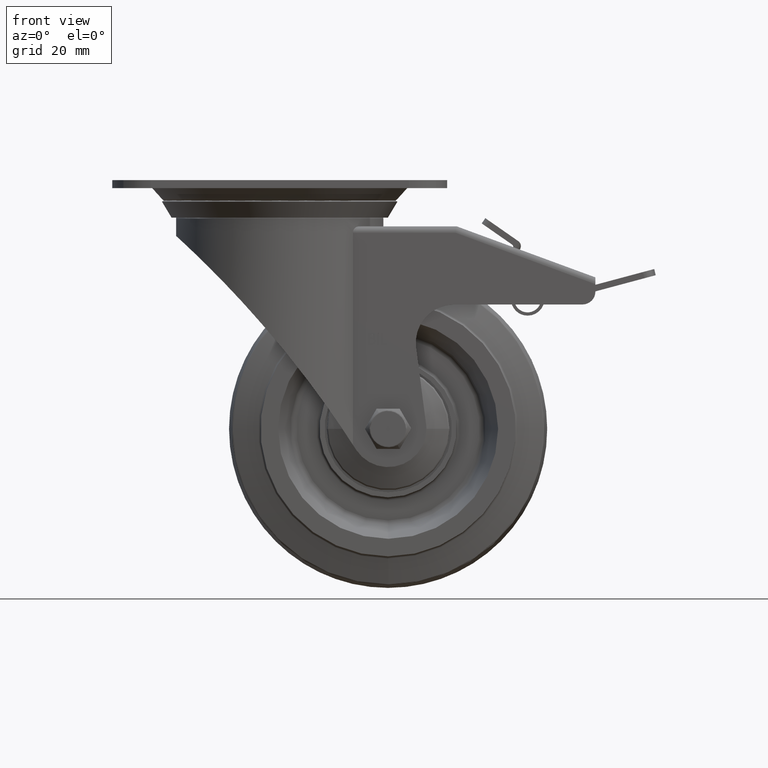
[diagram: clean part render]
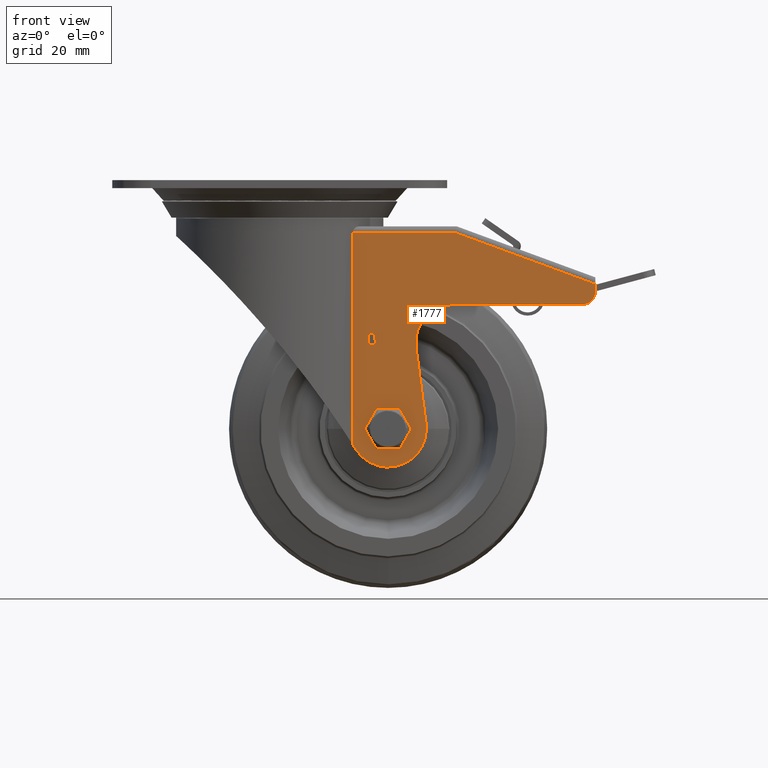
[diagram: same view with one face highlighted and labeled with its STEP entity id]
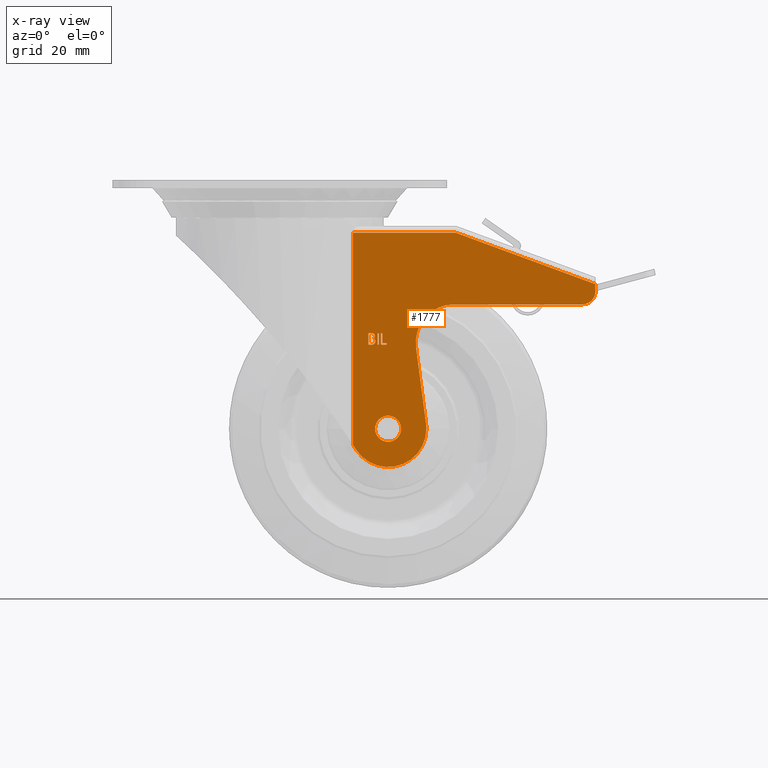
[diagram: x-ray of the same camera — body ghosted, the highlighted face saturated]
A machine part, front view. The second image highlights one B-rep face of the part: STEP entity #1777.
The next image is the same camera in x-ray: the body ghosted, the highlighted face saturated — about 0% of this face is hidden behind the body in this view.
In plain terms, the highlighted planar face has unit normal (-0, -1, 0).
Its self-contained STEP definition (entity closure, byte-faithful):
#1777=ADVANCED_FACE('121:19',(#3347,#3348,#3349,#3350,#3351),#3352,.T.);
#3347=FACE_BOUND('',#6241,.T.);
#3348=FACE_BOUND('',#6242,.T.);
#3349=FACE_BOUND('',#6243,.T.);
#3350=FACE_BOUND('',#6244,.T.);
#3351=FACE_OUTER_BOUND('',#6245,.T.);
#3352=PLANE('',#6246);
#6241=EDGE_LOOP('',(#15503,#15504));
#6242=EDGE_LOOP('',(#15505,#15506,#15507,#15508,#15509,#15510,#15511));
#6243=EDGE_LOOP('',(#15512,#15513,#15514,#15515,#15516));
#6244=EDGE_LOOP('',(#15517,#15518,#15519,#15520,#15521,#15522,#15523,#15524));
#6245=EDGE_LOOP('',(#15525,#15526,#15527,#15528,#15529,#15530,#15531,#15532,#15533,#15534,#15535,#15536,#15537));
#6246=AXIS2_PLACEMENT_3D('',#15538,#15539,#15540);
#15503=ORIENTED_EDGE('',*,*,#23689,.T.);
#15504=ORIENTED_EDGE('',*,*,#23830,.T.);
#15505=ORIENTED_EDGE('',*,*,#23838,.T.);
#15506=ORIENTED_EDGE('',*,*,#23839,.T.);
#15507=ORIENTED_EDGE('',*,*,#23840,.T.);
#15508=ORIENTED_EDGE('',*,*,#23841,.T.);
#15509=ORIENTED_EDGE('',*,*,#23842,.T.);
#15510=ORIENTED_EDGE('',*,*,#23843,.T.);
#15511=ORIENTED_EDGE('',*,*,#23844,.T.);
#15512=ORIENTED_EDGE('',*,*,#23845,.T.);
#15513=ORIENTED_EDGE('',*,*,#23846,.T.);
#15514=ORIENTED_EDGE('',*,*,#23847,.T.);
#15515=ORIENTED_EDGE('',*,*,#23848,.T.);
#15516=ORIENTED_EDGE('',*,*,#23849,.T.);
#15517=ORIENTED_EDGE('',*,*,#23850,.T.);
#15518=ORIENTED_EDGE('',*,*,#23851,.T.);
#15519=ORIENTED_EDGE('',*,*,#23852,.T.);
#15520=ORIENTED_EDGE('',*,*,#23853,.T.);
#15521=ORIENTED_EDGE('',*,*,#23854,.T.);
#15522=ORIENTED_EDGE('',*,*,#23855,.T.);
#15523=ORIENTED_EDGE('',*,*,#23856,.T.);
#15524=ORIENTED_EDGE('',*,*,#23857,.T.);
#15525=ORIENTED_EDGE('',*,*,#23675,.F.);
#15526=ORIENTED_EDGE('',*,*,#23679,.F.);
#15527=ORIENTED_EDGE('',*,*,#23827,.F.);
#15528=ORIENTED_EDGE('',*,*,#23787,.T.);
#15529=ORIENTED_EDGE('',*,*,#23685,.T.);
#15530=ORIENTED_EDGE('',*,*,#23832,.T.);
#15531=ORIENTED_EDGE('',*,*,#23834,.T.);
#15532=ORIENTED_EDGE('',*,*,#23835,.F.);
#15533=ORIENTED_EDGE('',*,*,#23683,.F.);
#15534=ORIENTED_EDGE('',*,*,#23836,.T.);
#15535=ORIENTED_EDGE('',*,*,#23645,.F.);
#15536=ORIENTED_EDGE('',*,*,#23858,.F.);
#15537=ORIENTED_EDGE('',*,*,#23797,.F.);
#15538=CARTESIAN_POINT('',(0.0614608737139057,-0.023,-0.0145));
#15539=DIRECTION('',(-4.62110775502893E-17,-1.0,0.0));
#15540=DIRECTION('',(-1.0,4.62110775502893E-17,0.0));
#23645=EDGE_CURVE('116:5936',#26881,#26884,#26885,.F.);
#23675=EDGE_CURVE('116:6323',#26938,#26940,#26941,.T.);
#23679=EDGE_CURVE('116:6230',#26945,#26938,#26947,.T.);
#23683=EDGE_CURVE('116:6317',#26953,#26949,#26955,.F.);
#23685=EDGE_CURVE('116:6305',#26959,#26956,#26960,.F.);
#23689=EDGE_CURVE('116:6290',#26967,#26964,#26968,.F.);
#23787=EDGE_CURVE('116:6296',#27136,#26959,#27137,.F.);
#23797=EDGE_CURVE('116:6041',#26940,#27150,#27151,.F.);
#23827=EDGE_CURVE('116:6251',#27136,#26945,#27193,.T.);
#23830=EDGE_CURVE('116:6290',#26964,#26967,#27196,.F.);
#23832=EDGE_CURVE('116:6305',#26956,#27197,#27199,.F.);
#23834=EDGE_CURVE('116:6311',#27197,#27200,#27202,.F.);
#23835=EDGE_CURVE('116:6317',#26949,#27200,#27203,.F.);
#23836=EDGE_CURVE('116:6320',#26953,#26884,#27204,.F.);
#23838=EDGE_CURVE('121:1451',#27206,#27207,#27208,.T.);
#23839=EDGE_CURVE('121:1511',#27207,#27209,#27210,.T.);
#23840=EDGE_CURVE('121:1501',#27209,#27211,#27212,.T.);
#23841=EDGE_CURVE('121:1491',#27211,#27213,#27214,.T.);
#23842=EDGE_CURVE('121:1481',#27213,#27215,#27216,.T.);
#23843=EDGE_CURVE('121:1471',#27215,#27217,#27218,.T.);
#23844=EDGE_CURVE('121:1461',#27217,#27206,#27219,.T.);
#23845=EDGE_CURVE('121:1401',#27220,#27221,#27222,.T.);
#23846=EDGE_CURVE('121:1441',#27221,#27223,#27224,.T.);
#23847=EDGE_CURVE('121:1431',#27223,#27225,#27226,.T.);
#23848=EDGE_CURVE('121:1421',#27225,#27227,#27228,.T.);
#23849=EDGE_CURVE('121:1411',#27227,#27220,#27229,.T.);
#23850=EDGE_CURVE('121:1321',#27230,#27231,#27232,.T.);
#23851=EDGE_CURVE('121:1391',#27231,#27233,#27234,.T.);
#23852=EDGE_CURVE('121:1381',#27233,#27235,#27236,.T.);
#23853=EDGE_CURVE('121:1371',#27235,#27237,#27238,.T.);
#23854=EDGE_CURVE('121:1361',#27237,#27239,#27240,.T.);
#23855=EDGE_CURVE('121:1351',#27239,#27241,#27242,.T.);
#23856=EDGE_CURVE('121:1341',#27241,#27243,#27244,.T.);
#23857=EDGE_CURVE('121:1331',#27243,#27230,#27245,.T.);
#23858=EDGE_CURVE('116:5936',#27150,#26881,#27246,.F.);
#26881=VERTEX_POINT('',#31974);
#26884=VERTEX_POINT('',#31978);
#26885=CIRCLE('',#31979,0.004);
#26938=VERTEX_POINT('',#32046);
#26940=VERTEX_POINT('',#32048);
#26941=LINE('',#32049,#32050);
#26945=VERTEX_POINT('',#32055);
#26947=LINE('',#32072,#32073);
#26949=VERTEX_POINT('',#32075);
#26953=VERTEX_POINT('',#32080);
#26955=CIRCLE('',#32083,0.012);
#26956=VERTEX_POINT('',#32084);
#26959=VERTEX_POINT('',#32088);
#26960=CIRCLE('',#32089,0.0120062138743916);
#26964=VERTEX_POINT('',#32094);
#26967=VERTEX_POINT('',#32098);
#26968=CIRCLE('',#32099,0.00410000000000001);
#27136=VERTEX_POINT('',#32604);
#27137=CIRCLE('',#32605,0.336151856425228);
#27150=VERTEX_POINT('',#32798);
#27151=LINE('',#32799,#32800);
#27193=LINE('',#32862,#32863);
#27196=CIRCLE('',#32881,0.00410000000000001);
#27197=VERTEX_POINT('',#32882);
#27199=CIRCLE('',#32885,0.0120062138743916);
#27200=VERTEX_POINT('',#32886);
#27202=LINE('',#32889,#32890);
#27203=CIRCLE('',#32891,0.012);
#27204=LINE('',#32892,#32893);
#27206=VERTEX_POINT('',#32895);
#27207=VERTEX_POINT('',#32896);
#27208=B_SPLINE_CURVE_WITH_KNOTS('',2,(#32897,#32898,#32899,#32900,#32901,#32902,#32903,#32904),.UNSPECIFIED.,.F.,.F.,(3,1,1,1,1,1,3),(0.0,1.0,1.99999999999999,2.99999999999997,3.99999999999996,5.16362566215416,6.32725132430834),.UNSPECIFIED.);
#27209=VERTEX_POINT('',#32905);
#27210=B_SPLINE_CURVE_WITH_KNOTS('',2,(#32906,#32907,#32908,#32909,#32910,#32911,#32912,#32913),.UNSPECIFIED.,.F.,.F.,(3,1,1,1,1,1,3),(0.0,1.0,1.99999999999998,2.76418305597574,3.52836611195151,4.29254916792726,5.056732223903),.UNSPECIFIED.);
#27211=VERTEX_POINT('',#32914);
#27212=LINE('',#32915,#32916);
#27213=VERTEX_POINT('',#32917);
#27214=B_SPLINE_CURVE_WITH_KNOTS('',2,(#32918,#32919,#32920,#32921),.UNSPECIFIED.,.F.,.F.,(3,1,3),(0.0,1.0,2.00000000000008),.UNSPECIFIED.);
#27215=VERTEX_POINT('',#32922);
#27216=LINE('',#32923,#32924);
#27217=VERTEX_POINT('',#32925);
#27218=B_SPLINE_CURVE_WITH_KNOTS('',2,(#32926,#32927,#32928,#32929),.UNSPECIFIED.,.F.,.F.,(3,1,3),(0.0,1.0,2.00000000000008),.UNSPECIFIED.);
#27219=LINE('',#32930,#32931);
#27220=VERTEX_POINT('',#32932);
#27221=VERTEX_POINT('',#32933);
#27222=B_SPLINE_CURVE_WITH_KNOTS('',2,(#32934,#32935,#32936,#32937),.UNSPECIFIED.,.F.,.F.,(3,1,3),(0.0,1.0,2.00000000000008),.UNSPECIFIED.);
#27223=VERTEX_POINT('',#32938);
#27224=B_SPLINE_CURVE_WITH_KNOTS('',2,(#32939,#32940,#32941,#32942),.UNSPECIFIED.,.F.,.F.,(3,1,3),(0.0,1.0,1.99999999999997),.UNSPECIFIED.);
#27225=VERTEX_POINT('',#32943);
#27226=LINE('',#32944,#32945);
#27227=VERTEX_POINT('',#32946);
#27228=B_SPLINE_CURVE_WITH_KNOTS('',2,(#32947,#32948,#32949,#32950,#32951,#32952),.UNSPECIFIED.,.F.,.F.,(3,1,1,1,3),(0.0,1.0,2.0,3.00768321513001,4.01536643026005),.UNSPECIFIED.);
#27229=LINE('',#32953,#32954);
#27230=VERTEX_POINT('',#32955);
#27231=VERTEX_POINT('',#32956);
#27232=B_SPLINE_CURVE_WITH_KNOTS('',2,(#32957,#32958,#32959,#32960,#32961,#32962),.UNSPECIFIED.,.F.,.F.,(3,1,1,1,3),(0.0,1.0,2.0,2.99231678486995,3.98463356973985),.UNSPECIFIED.);
#27233=VERTEX_POINT('',#32963);
#27234=LINE('',#32964,#32965);
#27235=VERTEX_POINT('',#32966);
#27236=LINE('',#32967,#32968);
#27237=VERTEX_POINT('',#32969);
#27238=LINE('',#32970,#32971);
#27239=VERTEX_POINT('',#32972);
#27240=B_SPLINE_CURVE_WITH_KNOTS('',2,(#32973,#32974,#32975,#32976,#32977,#32978),.UNSPECIFIED.,.F.,.F.,(3,1,1,1,3),(0.0,1.0,1.99999999999989,3.00850546780042,4.01701093560095),.UNSPECIFIED.);
#27241=VERTEX_POINT('',#32979);
#27242=LINE('',#32980,#32981);
#27243=VERTEX_POINT('',#32982);
#27244=B_SPLINE_CURVE_WITH_KNOTS('',2,(#32983,#32984,#32985,#32986),.UNSPECIFIED.,.F.,.F.,(3,1,3),(0.0,1.0,2.00000000000005),.UNSPECIFIED.);
#27245=LINE('',#32987,#32988);
#27246=CIRCLE('',#32989,0.004);
#31974=CARTESIAN_POINT('',(0.0978284271247462,-0.023,-0.0378284271247462));
#31978=CARTESIAN_POINT('',(0.095,-0.023,-0.039));
#31979=AXIS2_PLACEMENT_3D('',#41978,#41979,#41980);
#32046=CARTESIAN_POINT('',(0.0551438477624214,-0.023,-0.0165));
#32048=CARTESIAN_POINT('',(0.099,-0.023,-0.0326309985241669));
#32049=CARTESIAN_POINT('',(0.0683098570556261,-0.023,-0.0213426700848569));
#32050=VECTOR('',#42040,1.0);
#32055=CARTESIAN_POINT('',(0.0229619250064101,-0.023,-0.0165));
#32072=CARTESIAN_POINT('',(0.0307304368569528,-0.023,-0.0165));
#32073=VECTOR('',#42045,1.0);
#32075=CARTESIAN_POINT('',(0.0456527576748423,-0.023,-0.0430839339503847));
#32080=CARTESIAN_POINT('',(0.054671399385107,-0.023,-0.039));
#32083=AXIS2_PLACEMENT_3D('',#42051,#42052,#42053);
#32084=CARTESIAN_POINT('',(0.0460062138743916,-0.023,-0.078));
#32088=CARTESIAN_POINT('',(0.0239999999999996,-0.023,-0.0846444842988471));
#32089=AXIS2_PLACEMENT_3D('',#42055,#42056,#42057);
#32094=CARTESIAN_POINT('',(0.0299,-0.023,-0.078));
#32098=CARTESIAN_POINT('',(0.0381,-0.023,-0.078));
#32099=AXIS2_PLACEMENT_3D('',#42063,#42064,#42065);
#32604=CARTESIAN_POINT('',(0.0229619250064161,-0.0229999999999978,-0.0830301909058786));
#32605=AXIS2_PLACEMENT_3D('',#42227,#42228,#42229);
#32798=CARTESIAN_POINT('',(0.099,-0.023,-0.035));
#32799=CARTESIAN_POINT('',(0.099,-0.023,-0.0145));
#32800=VECTOR('',#42245,1.0);
#32862=CARTESIAN_POINT('',(0.0229619250064101,-0.023,-0.00908812744929506));
#32863=VECTOR('',#42293,1.0);
#32881=AXIS2_PLACEMENT_3D('',#42297,#42298,#42299);
#32882=CARTESIAN_POINT('',(0.0459546619707595,-0.023,-0.0768885915411021));
#32885=AXIS2_PLACEMENT_3D('',#42301,#42302,#42303);
#32886=CARTESIAN_POINT('',(0.0427727054757284,-0.023,-0.052555983049688));
#32889=CARTESIAN_POINT('',(0.0412806079432736,-0.023,-0.041145825448563));
#32890=VECTOR('',#42305,1.0);
#32891=AXIS2_PLACEMENT_3D('',#42306,#42307,#42308);
#32892=CARTESIAN_POINT('',(0.0657304368569528,-0.023,-0.039));
#32893=VECTOR('',#42309,1.0);
#32895=CARTESIAN_POINT('',(0.0288947813287422,-0.023,-0.0480337421188891));
#32896=CARTESIAN_POINT('',(0.0294936635940179,-0.023,-0.0496330528491424));
#32897=CARTESIAN_POINT('',(0.0288947813287422,-0.023,-0.0480337421188891));
#32898=CARTESIAN_POINT('',(0.0290858580798599,-0.023,-0.0480337421188891));
#32899=CARTESIAN_POINT('',(0.0294250346819464,-0.023,-0.0481791594065195));
#32900=CARTESIAN_POINT('',(0.0296749042795619,-0.023,-0.048429029004135));
#32901=CARTESIAN_POINT('',(0.0298198185865663,-0.023,-0.0487670878714971));
#32902=CARTESIAN_POINT('',(0.0298198185865663,-0.023,-0.0491779671561469));
#32903=CARTESIAN_POINT('',(0.029634833489696,-0.023,-0.0495478814631514));
#32904=CARTESIAN_POINT('',(0.0294936635940179,-0.023,-0.0496330528491424));
#32905=CARTESIAN_POINT('',(0.0288947813287422,-0.023,-0.0516337421188891));
#32906=CARTESIAN_POINT('',(0.0294936635940179,-0.023,-0.0496330528491424));
#32907=CARTESIAN_POINT('',(0.0297097217162236,-0.023,-0.04974544107567));
#32908=CARTESIAN_POINT('',(0.0299951352780716,-0.023,-0.0502395915972795));
#32909=CARTESIAN_POINT('',(0.0299951352780716,-0.023,-0.0507609589594256));
#32910=CARTESIAN_POINT('',(0.0298222217162236,-0.023,-0.0511620580652378));
#32911=CARTESIAN_POINT('',(0.0295232835642116,-0.023,-0.0514609962172497));
#32912=CARTESIAN_POINT('',(0.0291226874390254,-0.023,-0.0516337421188891));
#32913=CARTESIAN_POINT('',(0.0288947813287422,-0.023,-0.0516337421188891));
#32914=CARTESIAN_POINT('',(0.0280180302110075,-0.023,-0.0516337421188891));
#32915=CARTESIAN_POINT('',(0.0449586397418903,-0.023,-0.0516337421188891));
#32916=VECTOR('',#42313,1.0);
#32917=CARTESIAN_POINT('',(0.0277943714926766,-0.023,-0.0514118717761171));
#32918=CARTESIAN_POINT('',(0.0280180302110075,-0.023,-0.0516337421188891));
#32919=CARTESIAN_POINT('',(0.0279227433257616,-0.023,-0.0516337421188891));
#32920=CARTESIAN_POINT('',(0.0277943714926766,-0.023,-0.0515053702858041));
#32921=CARTESIAN_POINT('',(0.0277943714926766,-0.023,-0.0514118717761171));
#32922=CARTESIAN_POINT('',(0.0277943714926766,-0.023,-0.048255612461661));
#32923=CARTESIAN_POINT('',(0.0277943714926766,-0.023,-0.0321668710594445));
#32924=VECTOR('',#42314,1.0);
#32925=CARTESIAN_POINT('',(0.0280180302110075,-0.023,-0.0480337421188891));
#32926=CARTESIAN_POINT('',(0.0277943714926766,-0.023,-0.048255612461661));
#32927=CARTESIAN_POINT('',(0.0277943714926766,-0.023,-0.0481628404795448));
#32928=CARTESIAN_POINT('',(0.0279234698533324,-0.023,-0.0480337421188891));
#32929=CARTESIAN_POINT('',(0.0280180302110075,-0.023,-0.0480337421188891));
#32930=CARTESIAN_POINT('',(0.0449586397418903,-0.023,-0.0480337421188891));
#32931=VECTOR('',#42315,1.0);
#32932=CARTESIAN_POINT('',(0.0306593491379821,-0.023,-0.048255612461661));
#32933=CARTESIAN_POINT('',(0.030883007856313,-0.023,-0.0480337421188891));
#32934=CARTESIAN_POINT('',(0.0306593491379821,-0.023,-0.048255612461661));
#32935=CARTESIAN_POINT('',(0.0306593491379821,-0.023,-0.0481628404795448));
#32936=CARTESIAN_POINT('',(0.0307884474986379,-0.023,-0.0480337421188891));
#32937=CARTESIAN_POINT('',(0.030883007856313,-0.023,-0.0480337421188891));
#32938=CARTESIAN_POINT('',(0.0311066106879076,-0.023,-0.048255612461661));
#32939=CARTESIAN_POINT('',(0.030883007856313,-0.023,-0.0480337421188891));
#32940=CARTESIAN_POINT('',(0.0309768416864173,-0.023,-0.0480337421188891));
#32941=CARTESIAN_POINT('',(0.0311066106879076,-0.023,-0.0481635670071156));
#32942=CARTESIAN_POINT('',(0.0311066106879076,-0.023,-0.048255612461661));
#32943=CARTESIAN_POINT('',(0.0311066106879076,-0.023,-0.0514118717761171));
#32944=CARTESIAN_POINT('',(0.0311066106879076,-0.023,-0.0321668710594445));
#32945=VECTOR('',#42316,1.0);
#32946=CARTESIAN_POINT('',(0.0306593491379821,-0.023,-0.0514118717761171));
#32947=CARTESIAN_POINT('',(0.0311066106879076,-0.023,-0.0514118717761171));
#32948=CARTESIAN_POINT('',(0.0311066106879076,-0.023,-0.0515046437582333));
#32949=CARTESIAN_POINT('',(0.0309775682139881,-0.023,-0.0516337421188891));
#32950=CARTESIAN_POINT('',(0.0307877209710671,-0.023,-0.0516337421188891));
#32951=CARTESIAN_POINT('',(0.0306593491379821,-0.023,-0.0515053702858041));
#32952=CARTESIAN_POINT('',(0.0306593491379821,-0.023,-0.0514118717761171));
#32953=CARTESIAN_POINT('',(0.0306593491379821,-0.023,-0.0321668710594445));
#32954=VECTOR('',#42317,1.0);
#32955=CARTESIAN_POINT('',(0.0317359512244203,-0.023,-0.048255612461661));
#32956=CARTESIAN_POINT('',(0.0321832127743458,-0.023,-0.048255612461661));
#32957=CARTESIAN_POINT('',(0.0317359512244203,-0.023,-0.048255612461661));
#32958=CARTESIAN_POINT('',(0.0317359512244203,-0.023,-0.0481628404795448));
#32959=CARTESIAN_POINT('',(0.031865049585076,-0.023,-0.0480337421188891));
#32960=CARTESIAN_POINT('',(0.0320534437728555,-0.023,-0.0480337421188891));
#32961=CARTESIAN_POINT('',(0.0321832127743458,-0.023,-0.0481635670071156));
#32962=CARTESIAN_POINT('',(0.0321832127743458,-0.023,-0.048255612461661));
#32963=CARTESIAN_POINT('',(0.0321832127743458,-0.023,-0.0511900573200813));
#32964=CARTESIAN_POINT('',(0.0321832127743458,-0.023,-0.0321114174454356));
#32965=VECTOR('',#42318,1.0);
#32966=CARTESIAN_POINT('',(0.0334106531618271,-0.023,-0.0511900573200813));
#32967=CARTESIAN_POINT('',(0.0471289033409961,-0.023,-0.0511900573200813));
#32968=VECTOR('',#42319,1.0);
#32969=CARTESIAN_POINT('',(0.0333865100917824,-0.023,-0.0512133062023466));
#32970=CARTESIAN_POINT('',(0.0498476889320957,-0.023,-0.0353618006524142));
#32971=VECTOR('',#42320,1.0);
#32972=CARTESIAN_POINT('',(0.0333623670217377,-0.023,-0.0516337421188891));
#32973=CARTESIAN_POINT('',(0.0333865100917824,-0.023,-0.0512133062023466));
#32974=CARTESIAN_POINT('',(0.033456200851842,-0.023,-0.0511900573200813));
#32975=CARTESIAN_POINT('',(0.0335860257400686,-0.023,-0.0513198822083078));
#32976=CARTESIAN_POINT('',(0.0335860257400686,-0.023,-0.0515046437582333));
#32977=CARTESIAN_POINT('',(0.0334569273794128,-0.023,-0.0516337421188891));
#32978=CARTESIAN_POINT('',(0.0333623670217377,-0.023,-0.0516337421188891));
#32979=CARTESIAN_POINT('',(0.0319596099427511,-0.023,-0.0516337421188891));
#32980=CARTESIAN_POINT('',(0.0470609310980751,-0.023,-0.0516337421188891));
#32981=VECTOR('',#42321,1.0);
#32982=CARTESIAN_POINT('',(0.0317359512244203,-0.023,-0.0514118717761171));
#32983=CARTESIAN_POINT('',(0.0319596099427511,-0.023,-0.0516337421188891));
#32984=CARTESIAN_POINT('',(0.0318643230575052,-0.023,-0.0516337421188891));
#32985=CARTESIAN_POINT('',(0.0317359512244203,-0.023,-0.0515053702858041));
#32986=CARTESIAN_POINT('',(0.0317359512244203,-0.023,-0.0514118717761171));
#32987=CARTESIAN_POINT('',(0.0317359512244203,-0.023,-0.0321668710594445));
#32988=VECTOR('',#42322,1.0);
#32989=AXIS2_PLACEMENT_3D('',#42323,#42324,#42325);
#41978=CARTESIAN_POINT('',(0.095,-0.023,-0.035));
#41979=DIRECTION('',(-4.62110775502893E-17,-1.0,0.0));
#41980=DIRECTION('',(0.707106781186549,-3.26761663017471E-17,-0.707106781186546));
#42040=DIRECTION('',(0.938527163354995,-4.33703515288507E-17,-0.345205393417929));
#42045=DIRECTION('',(1.0,-4.62110775502893E-17,0.0));
#42051=CARTESIAN_POINT('',(0.054671399385107,-0.023,-0.051));
#42052=DIRECTION('',(4.62110775502893E-17,1.0,0.0));
#42053=DIRECTION('',(-0.751553475855399,3.47300959559433E-17,0.659672170801276));
#42055=CARTESIAN_POINT('',(0.034,-0.023,-0.078));
#42056=DIRECTION('',(4.62110775502893E-17,1.0,-0.0));
#42057=DIRECTION('',(-1.0,4.62110775502893E-17,0.0));
#42063=CARTESIAN_POINT('',(0.034,-0.023,-0.078));
#42064=DIRECTION('',(-4.62110775502893E-17,-1.0,0.0));
#42065=DIRECTION('',(-1.0,4.62110775502893E-17,0.0));
#42227=CARTESIAN_POINT('',(-0.259256496379895,-0.023,-0.265652295833913));
#42228=DIRECTION('',(-4.62110775502893E-17,-1.0,0.0));
#42229=DIRECTION('',(0.674565652533689,-3.11724056819958E-17,0.738214860607532));
#42245=DIRECTION('',(-0.0,0.0,1.0));
#42293=DIRECTION('',(-0.0,-0.0,1.0));
#42297=CARTESIAN_POINT('',(0.034,-0.023,-0.078));
#42298=DIRECTION('',(-4.62110775502893E-17,-1.0,0.0));
#42299=DIRECTION('',(-1.0,4.62110775502893E-17,0.0));
#42301=CARTESIAN_POINT('',(0.034,-0.023,-0.078));
#42302=DIRECTION('',(4.62110775502893E-17,1.0,-0.0));
#42303=DIRECTION('',(-1.0,4.62110775502893E-17,0.0));
#42305=DIRECTION('',(0.129665254140665,-5.99197111467222E-18,-0.991557825781551));
#42306=CARTESIAN_POINT('',(0.054671399385107,-0.023,-0.051));
#42307=DIRECTION('',(4.62110775502893E-17,1.0,0.0));
#42308=DIRECTION('',(-0.751553475855399,3.47300959559433E-17,0.659672170801276));
#42309=DIRECTION('',(-1.0,4.62110775502893E-17,-2.66880534765663E-16));
#42313=DIRECTION('',(-1.0,4.62110775502893E-17,0.0));
#42314=DIRECTION('',(0.0,0.0,1.0));
#42315=DIRECTION('',(1.0,-4.62110775502893E-17,0.0));
#42316=DIRECTION('',(-0.0,0.0,-1.0));
#42317=DIRECTION('',(0.0,0.0,1.0));
#42318=DIRECTION('',(-0.0,0.0,-1.0));
#42319=DIRECTION('',(1.0,-4.62110775502893E-17,0.0));
#42320=DIRECTION('',(-0.720320213491458,3.32867732466947E-17,-0.693641687065894));
#42321=DIRECTION('',(-1.0,4.62110775502893E-17,0.0));
#42322=DIRECTION('',(0.0,0.0,1.0));
#42323=CARTESIAN_POINT('',(0.095,-0.023,-0.035));
#42324=DIRECTION('',(-4.62110775502893E-17,-1.0,0.0));
#42325=DIRECTION('',(0.707106781186549,-3.26761663017471E-17,-0.707106781186546));